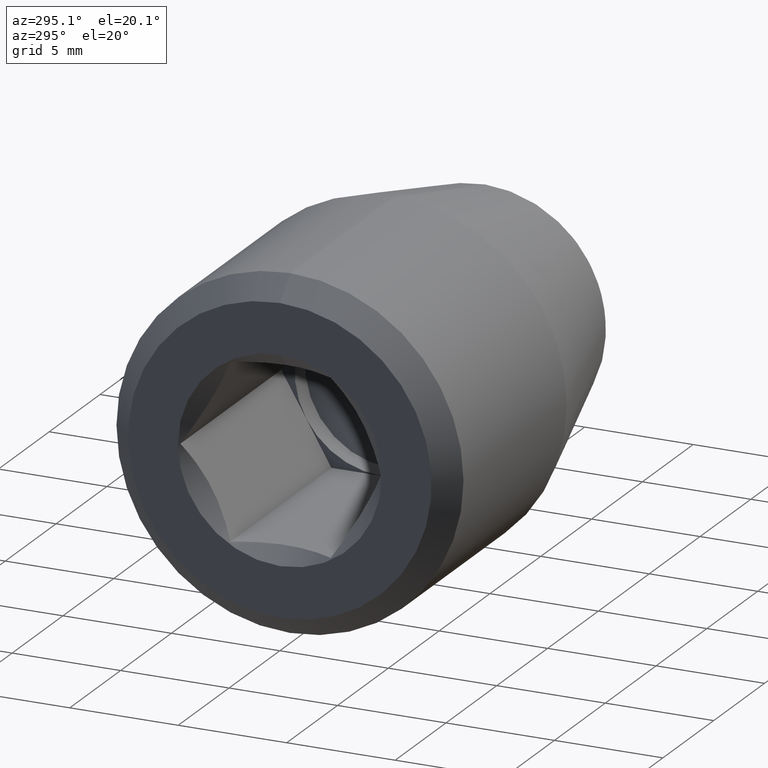
[diagram: clean part render]
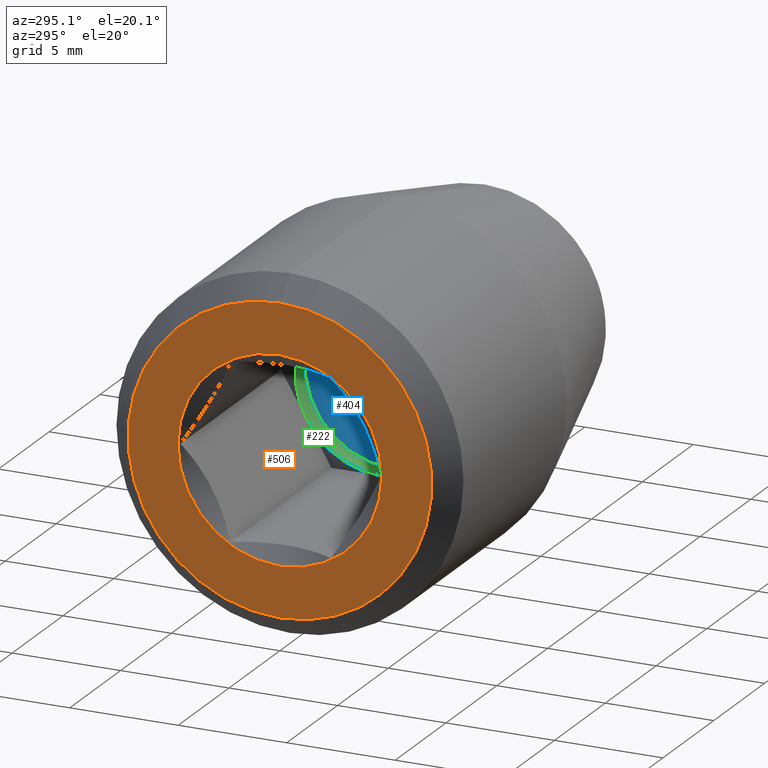
[diagram: same view with three faces highlighted in distinct colors, each labeled with its STEP entity id]
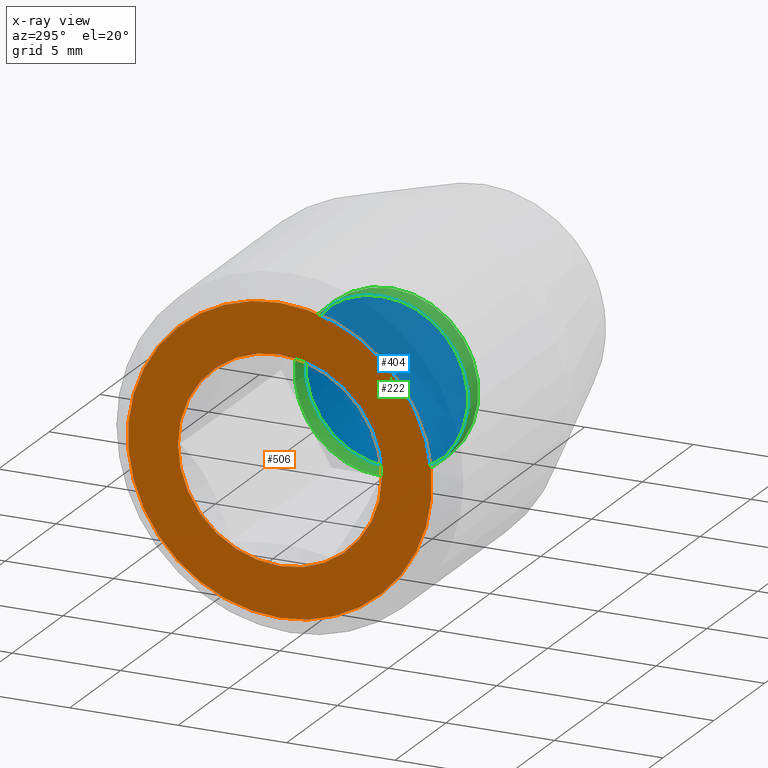
[diagram: x-ray of the same camera — body ghosted, the three highlighted faces saturated]
A machine part, auxiliary view with three faces highlighted in distinct colors.
The next image is the same camera in x-ray (body ghosted, the three faces saturated) — at least one of them is partly hidden behind the body in this view.
Their STEP definitions:

[orange] entity #506 — the highlighted planar face has unit normal (1, 0, 0).
#2 = FACE_BOUND ( 'NONE', #224, .T. ) ;
#34 = DIRECTION ( 'NONE',  ( 1.000000000000000000, 0.0000000000000000000, 0.0000000000000000000 ) ) ;
#59 = EDGE_CURVE ( 'NONE', #483, #483, #149, .T. ) ;
#66 = DIRECTION ( 'NONE',  ( 0.0000000000000000000, 0.0000000000000000000, 1.000000000000000000 ) ) ;
#85 = DIRECTION ( 'NONE',  ( -1.000000000000000000, -0.0000000000000000000, -0.0000000000000000000 ) ) ;
#100 = CARTESIAN_POINT ( 'NONE',  ( 0.0000000000000000000, 0.0000000000000000000, 4.700000000000000200 ) ) ;
#133 = DIRECTION ( 'NONE',  ( 0.0000000000000000000, 0.0000000000000000000, 1.000000000000000000 ) ) ;
#149 = CIRCLE ( 'NONE', #486, 4.700000000000000200 ) ;
#154 = CIRCLE ( 'NONE', #599, 7.000000000000000000 ) ;
#176 = ORIENTED_EDGE ( 'NONE', *, *, #400, .T. ) ;
#223 = FACE_OUTER_BOUND ( 'NONE', #562, .T. ) ;
#224 = EDGE_LOOP ( 'NONE', ( #270 ) ) ;
#270 = ORIENTED_EDGE ( 'NONE', *, *, #59, .F. ) ;
#319 = CARTESIAN_POINT ( 'NONE',  ( 0.0000000000000000000, 4.700000000000000200, 0.0000000000000000000 ) ) ;
#353 = CARTESIAN_POINT ( 'NONE',  ( 0.0000000000000000000, 0.0000000000000000000, 0.0000000000000000000 ) ) ;
#356 = DIRECTION ( 'NONE',  ( -1.000000000000000000, -0.0000000000000000000, -0.0000000000000000000 ) ) ;
#366 = CARTESIAN_POINT ( 'NONE',  ( 0.0000000000000000000, 0.0000000000000000000, 0.0000000000000000000 ) ) ;
#400 = EDGE_CURVE ( 'NONE', #601, #601, #154, .T. ) ;
#416 = AXIS2_PLACEMENT_3D ( 'NONE', #319, #34, #419 ) ;
#419 = DIRECTION ( 'NONE',  ( 0.0000000000000000000, 0.0000000000000000000, -1.000000000000000000 ) ) ;
#470 = PLANE ( 'NONE',  #416 ) ;
#477 = CARTESIAN_POINT ( 'NONE',  ( 0.0000000000000000000, 0.0000000000000000000, 7.000000000000000000 ) ) ;
#483 = VERTEX_POINT ( 'NONE', #100 ) ;
#486 = AXIS2_PLACEMENT_3D ( 'NONE', #366, #85, #133 ) ;
#506 = ADVANCED_FACE ( 'NONE', ( #2, #223 ), #470, .F. ) ;
#562 = EDGE_LOOP ( 'NONE', ( #176 ) ) ;
#599 = AXIS2_PLACEMENT_3D ( 'NONE', #353, #356, #66 ) ;
#601 = VERTEX_POINT ( 'NONE', #477 ) ;

[blue] entity #404 — the highlighted conical surface has half-angle 70 deg.
#90 = DIRECTION ( 'NONE',  ( 0.0000000000000000000, 0.0000000000000000000, 1.000000000000000000 ) ) ;
#94 = AXIS2_PLACEMENT_3D ( 'NONE', #458, #309, #508 ) ;
#143 = EDGE_CURVE ( 'NONE', #311, #311, #491, .T. ) ;
#204 = ORIENTED_EDGE ( 'NONE', *, *, #143, .T. ) ;
#232 = DIRECTION ( 'NONE',  ( -1.000000000000000000, -0.0000000000000000000, -0.0000000000000000000 ) ) ;
#282 = CARTESIAN_POINT ( 'NONE',  ( 11.00000000000000000, 0.0000000000000000000, 0.0000000000000000000 ) ) ;
#302 = EDGE_LOOP ( 'NONE', ( #204 ) ) ;
#309 = DIRECTION ( 'NONE',  ( -1.000000000000000000, -0.0000000000000000000, -0.0000000000000000000 ) ) ;
#311 = VERTEX_POINT ( 'NONE', #548 ) ;
#348 = CONICAL_SURFACE ( 'NONE', #94, 4.000000000000000000, 1.221730476396026600 ) ;
#404 = ADVANCED_FACE ( 'NONE', ( #499 ), #348, .F. ) ;
#458 = CARTESIAN_POINT ( 'NONE',  ( 11.00000000000000000, 0.0000000000000000000, 0.0000000000000000000 ) ) ;
#491 = CIRCLE ( 'NONE', #537, 4.000000000000000000 ) ;
#499 = FACE_OUTER_BOUND ( 'NONE', #302, .T. ) ;
#508 = DIRECTION ( 'NONE',  ( 0.0000000000000000000, 0.0000000000000000000, 1.000000000000000000 ) ) ;
#537 = AXIS2_PLACEMENT_3D ( 'NONE', #282, #232, #90 ) ;
#548 = CARTESIAN_POINT ( 'NONE',  ( 11.00000000000000000, 0.0000000000000000000, 4.000000000000000000 ) ) ;

[green] entity #222 — the highlighted cylindrical surface (bore or boss wall) has radius 4 mm, axis along (-1, -0, -0).
#1 = CARTESIAN_POINT ( 'NONE',  ( 10.00000000000000000, 0.0000000000000000000, 0.0000000000000000000 ) ) ;
#5 = ORIENTED_EDGE ( 'NONE', *, *, #131, .T. ) ;
#12 = EDGE_LOOP ( 'NONE', ( #457, #56, #188, #5, #285, #253 ) ) ;
#21 = VERTEX_POINT ( 'NONE', #170 ) ;
#30 = EDGE_CURVE ( 'NONE', #462, #337, #532, .T. ) ;
#31 = DIRECTION ( 'NONE',  ( -1.000000000000000000, -0.0000000000000000000, 0.0000000000000000000 ) ) ;
#56 = ORIENTED_EDGE ( 'NONE', *, *, #30, .T. ) ;
#78 = DIRECTION ( 'NONE',  ( 0.0000000000000000000, 0.0000000000000000000, -1.000000000000000000 ) ) ;
#87 = CARTESIAN_POINT ( 'NONE',  ( -3.622083305935164300, 0.0000000000000000000, 0.0000000000000000000 ) ) ;
#90 = DIRECTION ( 'NONE',  ( 0.0000000000000000000, 0.0000000000000000000, 1.000000000000000000 ) ) ;
#99 = DIRECTION ( 'NONE',  ( -1.000000000000000000, -0.0000000000000000000, 0.0000000000000000000 ) ) ;
#101 = EDGE_CURVE ( 'NONE', #193, #179, #578, .T. ) ;
#103 = CARTESIAN_POINT ( 'NONE',  ( 10.00000000000000000, 3.464101615137754800, -2.000000000000000900 ) ) ;
#131 = EDGE_CURVE ( 'NONE', #21, #193, #246, .T. ) ;
#136 = CARTESIAN_POINT ( 'NONE',  ( 10.00000000000000000, 0.0000000000000000000, -4.000000000000000900 ) ) ;
#142 = EDGE_LOOP ( 'NONE', ( #439 ) ) ;
#143 = EDGE_CURVE ( 'NONE', #311, #311, #491, .T. ) ;
#146 = AXIS2_PLACEMENT_3D ( 'NONE', #417, #529, #219 ) ;
#165 = EDGE_CURVE ( 'NONE', #337, #21, #455, .T. ) ;
#166 = CIRCLE ( 'NONE', #216, 4.000000000000000000 ) ;
#170 = CARTESIAN_POINT ( 'NONE',  ( 10.00000000000000000, -3.464101615137754800, 2.000000000000000900 ) ) ;
#171 = CARTESIAN_POINT ( 'NONE',  ( 10.00000000000000000, 0.0000000000000000000, 0.0000000000000000000 ) ) ;
#179 = VERTEX_POINT ( 'NONE', #624 ) ;
#188 = ORIENTED_EDGE ( 'NONE', *, *, #165, .T. ) ;
#193 = VERTEX_POINT ( 'NONE', #432 ) ;
#196 = DIRECTION ( 'NONE',  ( 0.0000000000000000000, 0.0000000000000000000, 1.000000000000000000 ) ) ;
#205 = FACE_OUTER_BOUND ( 'NONE', #12, .T. ) ;
#216 = AXIS2_PLACEMENT_3D ( 'NONE', #1, #384, #543 ) ;
#219 = DIRECTION ( 'NONE',  ( 0.0000000000000000000, 1.776356839400250500E-015, -1.000000000000000000 ) ) ;
#222 = ADVANCED_FACE ( 'NONE', ( #205, #589 ), #485, .F. ) ;
#230 = DIRECTION ( 'NONE',  ( -1.000000000000000000, -0.0000000000000000000, 0.0000000000000000000 ) ) ;
#232 = DIRECTION ( 'NONE',  ( -1.000000000000000000, -0.0000000000000000000, -0.0000000000000000000 ) ) ;
#246 = CIRCLE ( 'NONE', #146, 4.000000000000000000 ) ;
#253 = ORIENTED_EDGE ( 'NONE', *, *, #547, .T. ) ;
#257 = AXIS2_PLACEMENT_3D ( 'NONE', #324, #230, #318 ) ;
#265 = AXIS2_PLACEMENT_3D ( 'NONE', #87, #299, #196 ) ;
#272 = AXIS2_PLACEMENT_3D ( 'NONE', #339, #99, #441 ) ;
#281 = VERTEX_POINT ( 'NONE', #103 ) ;
#282 = CARTESIAN_POINT ( 'NONE',  ( 11.00000000000000000, 0.0000000000000000000, 0.0000000000000000000 ) ) ;
#285 = ORIENTED_EDGE ( 'NONE', *, *, #101, .T. ) ;
#286 = AXIS2_PLACEMENT_3D ( 'NONE', #378, #584, #476 ) ;
#299 = DIRECTION ( 'NONE',  ( -1.000000000000000000, -0.0000000000000000000, -0.0000000000000000000 ) ) ;
#311 = VERTEX_POINT ( 'NONE', #548 ) ;
#318 = DIRECTION ( 'NONE',  ( 0.0000000000000000000, -1.776356839400250500E-015, -1.000000000000000000 ) ) ;
#324 = CARTESIAN_POINT ( 'NONE',  ( 10.00000000000000000, 0.0000000000000000000, 0.0000000000000000000 ) ) ;
#337 = VERTEX_POINT ( 'NONE', #518 ) ;
#339 = CARTESIAN_POINT ( 'NONE',  ( 10.00000000000000000, 0.0000000000000000000, 0.0000000000000000000 ) ) ;
#378 = CARTESIAN_POINT ( 'NONE',  ( 10.00000000000000000, 0.0000000000000000000, 0.0000000000000000000 ) ) ;
#384 = DIRECTION ( 'NONE',  ( -1.000000000000000000, -0.0000000000000000000, 0.0000000000000000000 ) ) ;
#407 = AXIS2_PLACEMENT_3D ( 'NONE', #171, #31, #78 ) ;
#417 = CARTESIAN_POINT ( 'NONE',  ( 10.00000000000000000, 0.0000000000000000000, 0.0000000000000000000 ) ) ;
#432 = CARTESIAN_POINT ( 'NONE',  ( 10.00000000000000000, -7.511572993685793200E-016, 4.000000000000000000 ) ) ;
#439 = ORIENTED_EDGE ( 'NONE', *, *, #143, .F. ) ;
#441 = DIRECTION ( 'NONE',  ( 0.0000000000000000000, 8.881784197001252300E-016, -1.000000000000000000 ) ) ;
#455 = CIRCLE ( 'NONE', #286, 4.000000000000000000 ) ;
#457 = ORIENTED_EDGE ( 'NONE', *, *, #597, .T. ) ;
#462 = VERTEX_POINT ( 'NONE', #136 ) ;
#476 = DIRECTION ( 'NONE',  ( 0.0000000000000000000, 0.0000000000000000000, -1.000000000000000000 ) ) ;
#485 = CYLINDRICAL_SURFACE ( 'NONE', #265, 4.000000000000000000 ) ;
#491 = CIRCLE ( 'NONE', #537, 4.000000000000000000 ) ;
#518 = CARTESIAN_POINT ( 'NONE',  ( 10.00000000000000000, -3.464101615137755300, -1.999999999999999100 ) ) ;
#529 = DIRECTION ( 'NONE',  ( -1.000000000000000000, -0.0000000000000000000, 0.0000000000000000000 ) ) ;
#532 = CIRCLE ( 'NONE', #407, 4.000000000000000000 ) ;
#537 = AXIS2_PLACEMENT_3D ( 'NONE', #282, #232, #90 ) ;
#543 = DIRECTION ( 'NONE',  ( 0.0000000000000000000, 1.776356839400250500E-015, -1.000000000000000000 ) ) ;
#547 = EDGE_CURVE ( 'NONE', #179, #281, #166, .T. ) ;
#548 = CARTESIAN_POINT ( 'NONE',  ( 11.00000000000000000, 0.0000000000000000000, 4.000000000000000000 ) ) ;
#551 = CIRCLE ( 'NONE', #272, 4.000000000000000000 ) ;
#578 = CIRCLE ( 'NONE', #257, 4.000000000000000000 ) ;
#584 = DIRECTION ( 'NONE',  ( -1.000000000000000000, -0.0000000000000000000, 0.0000000000000000000 ) ) ;
#589 = FACE_OUTER_BOUND ( 'NONE', #142, .T. ) ;
#597 = EDGE_CURVE ( 'NONE', #281, #462, #551, .T. ) ;
#624 = CARTESIAN_POINT ( 'NONE',  ( 10.00000000000000000, 3.464101615137756200, 1.999999999999999100 ) ) ;